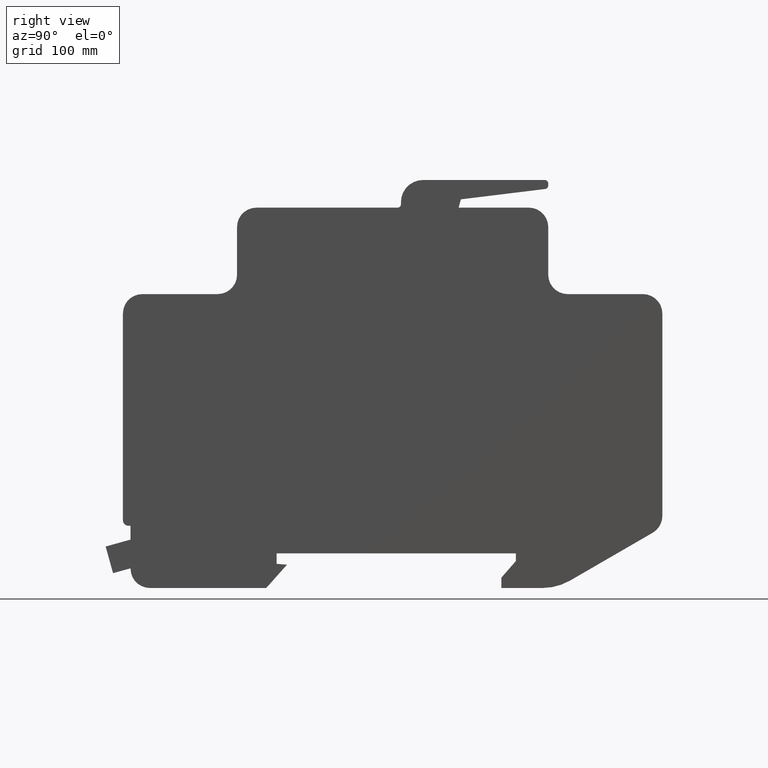
[diagram: clean part render]
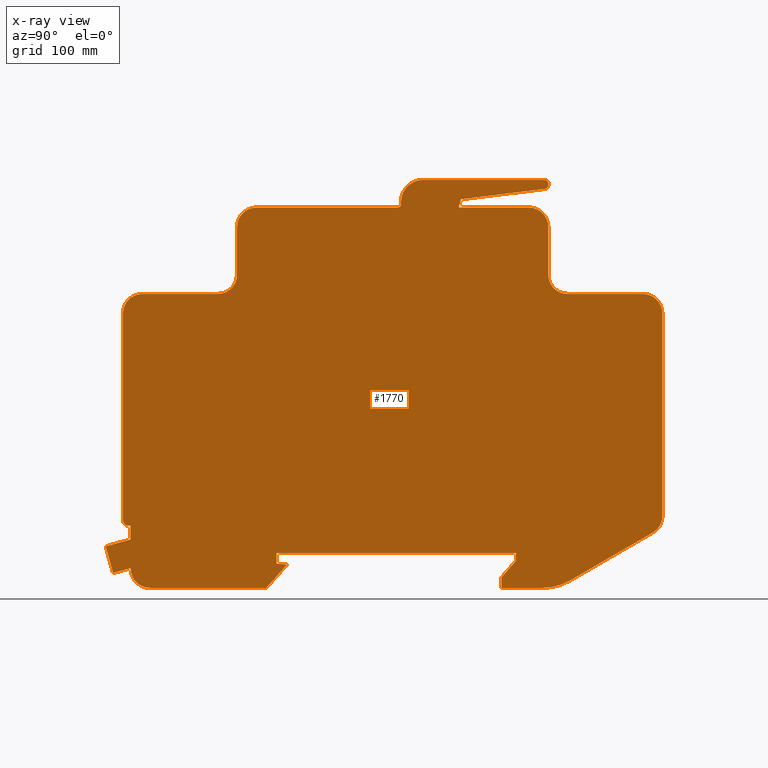
[diagram: x-ray — body ghosted, one internal face saturated and labeled with its STEP entity id]
A machine part, right view, then the same camera in x-ray: the body is ghosted and one INTERNAL B-rep face — a face not visible from any outside direction — is saturated and labeled: STEP entity #1770.
In plain terms, the highlighted planar face has unit normal (-1, 0, 0).
Its self-contained STEP definition (entity closure, byte-faithful):
#313=CARTESIAN_POINT('',(175.00000000000028,38.312738908399808,-50.0));
#314=VERTEX_POINT('',#313);
#315=CARTESIAN_POINT('',(175.00000000000028,-21.000000000000085,-50.0));
#316=VERTEX_POINT('',#315);
#317=CARTESIAN_POINT('',(175.00000000000028,38.312738908399808,-50.0));
#318=DIRECTION('',(0.0,-1.0,0.0));
#319=VECTOR('',#318,59.312738908399893);
#320=LINE('',#317,#319);
#321=EDGE_CURVE('',#314,#316,#320,.T.);
#353=CARTESIAN_POINT('',(175.00000000000028,-20.999999999999801,-35.000000000000284));
#354=VERTEX_POINT('',#353);
#355=CARTESIAN_POINT('',(175.00000000000028,-21.000000000000085,-50.0));
#356=DIRECTION('',(0.0,0.0,1.0));
#357=VECTOR('',#356,14.999999999999716);
#358=LINE('',#355,#357);
#359=EDGE_CURVE('',#316,#354,#358,.T.);
#384=CARTESIAN_POINT('',(175.00000000000028,0.0,-10.999999999999943));
#385=VERTEX_POINT('',#384);
#386=CARTESIAN_POINT('',(175.00000000000028,-20.999999999999801,-35.000000000000284));
#387=DIRECTION('',(0.0,0.658504607868509,0.752576694706886));
#388=VECTOR('',#387,31.890437438204074);
#389=LINE('',#386,#388);
#390=EDGE_CURVE('',#354,#385,#389,.T.);
#415=CARTESIAN_POINT('',(175.00000000000028,0.0,0.0));
#416=VERTEX_POINT('',#415);
#417=CARTESIAN_POINT('',(175.00000000000028,0.0,-10.999999999999943));
#418=DIRECTION('',(0.0,0.0,1.0));
#419=VECTOR('',#418,10.999999999999943);
#420=LINE('',#417,#419);
#421=EDGE_CURVE('',#385,#416,#420,.T.);
#446=CARTESIAN_POINT('',(175.00000000000028,-345.99999999999994,-3.155444E-029));
#447=VERTEX_POINT('',#446);
#448=CARTESIAN_POINT('',(175.00000000000028,0.0,0.0));
#449=DIRECTION('',(0.0,-1.0,0.0));
#450=VECTOR('',#449,345.99999999999994);
#451=LINE('',#448,#450);
#452=EDGE_CURVE('',#416,#447,#451,.T.);
#477=CARTESIAN_POINT('',(175.00000000000028,-345.99999999999994,-15.000000000000142));
#478=VERTEX_POINT('',#477);
#479=CARTESIAN_POINT('',(175.00000000000028,-345.99999999999994,-3.155444E-029));
#480=DIRECTION('',(0.0,0.0,-1.0));
#481=VECTOR('',#480,15.000000000000142);
#482=LINE('',#479,#481);
#483=EDGE_CURVE('',#447,#478,#482,.T.);
#508=CARTESIAN_POINT('',(175.00000000000028,-330.99999999999994,-16.312329952900058));
#509=VERTEX_POINT('',#508);
#510=CARTESIAN_POINT('',(175.00000000000028,-345.99999999999994,-15.000000000000142));
#511=DIRECTION('',(0.0,0.996194698091682,-0.087155742748387));
#512=VECTOR('',#511,15.057297563151176);
#513=LINE('',#510,#512);
#514=EDGE_CURVE('',#478,#509,#513,.T.);
#539=CARTESIAN_POINT('',(175.00000000000028,-360.99999999999994,-50.0));
#540=VERTEX_POINT('',#539);
#541=CARTESIAN_POINT('',(175.00000000000028,-330.99999999999994,-16.312329952900058));
#542=DIRECTION('',(0.0,-0.665049669487373,-0.74679912768745));
#543=VECTOR('',#542,45.109412689618068);
#544=LINE('',#541,#543);
#545=EDGE_CURVE('',#509,#540,#544,.T.);
#570=CARTESIAN_POINT('',(175.00000000000028,-529.19999999999982,-50.000000000000099));
#571=VERTEX_POINT('',#570);
#572=CARTESIAN_POINT('',(175.00000000000028,-360.99999999999994,-49.999999999999979));
#573=DIRECTION('',(0.0,-1.0,0.0));
#574=VECTOR('',#573,168.19999999999987);
#575=LINE('',#572,#574);
#576=EDGE_CURVE('',#540,#571,#575,.T.);
#601=CARTESIAN_POINT('',(175.00000000000028,-557.20000000000005,-22.000000000000028));
#602=VERTEX_POINT('',#601);
#603=CARTESIAN_POINT('',(175.00000000000028,-529.19999999999982,-21.999999999999972));
#604=DIRECTION('',(-1.0,0.0,0.0));
#605=DIRECTION('',(0.0,-0.707106781186546,-0.707106781186549));
#606=AXIS2_PLACEMENT_3D('',#603,#604,#605);
#607=CIRCLE('',#606,28.000000000000124);
#608=EDGE_CURVE('',#571,#602,#607,.T.);
#634=CARTESIAN_POINT('',(175.00000000000028,-557.20000000000005,-21.514537093899762));
#635=VERTEX_POINT('',#634);
#636=CARTESIAN_POINT('',(175.00000000000028,-557.20000000000005,-22.000000000000028));
#637=DIRECTION('',(0.0,0.0,1.0));
#638=VECTOR('',#637,0.485462906100267);
#639=LINE('',#636,#638);
#640=EDGE_CURVE('',#602,#635,#639,.T.);
#665=CARTESIAN_POINT('',(175.00000000000028,-582.49424544860267,-28.540716385189526));
#666=VERTEX_POINT('',#665);
#667=CARTESIAN_POINT('',(175.00000000000028,-557.20000000000005,-21.514537093899762));
#668=DIRECTION('',(0.0,-0.96351790962983,-0.267643863786493));
#669=VECTOR('',#668,26.251972273478877);
#670=LINE('',#667,#669);
#671=EDGE_CURVE('',#635,#666,#670,.T.);
#696=CARTESIAN_POINT('',(175.00000000000028,-593.20000000004075,9.999999999966299));
#697=VERTEX_POINT('',#696);
#698=CARTESIAN_POINT('',(175.00000000000028,-582.49424544860267,-28.540716385189526));
#699=DIRECTION('',(0.0,-0.267643863786234,0.963517909629902));
#700=VECTOR('',#699,39.999999999958227);
#701=LINE('',#698,#700);
#702=EDGE_CURVE('',#666,#697,#701,.T.);
#727=CARTESIAN_POINT('',(175.00000000000028,-557.20000000000005,20.000000000000455));
#728=VERTEX_POINT('',#727);
#729=CARTESIAN_POINT('',(175.00000000000028,-593.20000000004075,9.999999999966299));
#730=DIRECTION('',(0.0,0.963517909629783,0.267643863786662));
#731=VECTOR('',#730,37.363083384587163);
#732=LINE('',#729,#731);
#733=EDGE_CURVE('',#697,#728,#732,.T.);
#758=CARTESIAN_POINT('',(175.00000000000028,-557.20000000000005,40.0));
#759=VERTEX_POINT('',#758);
#760=CARTESIAN_POINT('',(175.00000000000028,-557.20000000000005,20.000000000000455));
#761=DIRECTION('',(0.0,0.0,1.0));
#762=VECTOR('',#761,19.999999999999545);
#763=LINE('',#760,#762);
#764=EDGE_CURVE('',#728,#759,#763,.T.);
#789=CARTESIAN_POINT('',(175.00000000000028,-560.20000000000005,39.999999999999922));
#790=VERTEX_POINT('',#789);
#791=CARTESIAN_POINT('',(175.00000000000028,-557.20000000000005,40.0));
#792=DIRECTION('',(0.0,-1.0,0.0));
#793=VECTOR('',#792,3.0);
#794=LINE('',#791,#793);
#795=EDGE_CURVE('',#759,#790,#794,.T.);
#820=CARTESIAN_POINT('',(175.00000000000028,-568.20000000000027,47.999999999999972));
#821=VERTEX_POINT('',#820);
#822=CARTESIAN_POINT('',(175.00000000000028,-560.20000000000005,48.000000000000043));
#823=DIRECTION('',(-1.0,0.0,0.0));
#824=DIRECTION('',(0.0,-0.707106781186542,-0.707106781186553));
#825=AXIS2_PLACEMENT_3D('',#822,#823,#824);
#826=CIRCLE('',#825,8.000000000000117);
#827=EDGE_CURVE('',#790,#821,#826,.T.);
#853=CARTESIAN_POINT('',(175.00000000000028,-568.20000000000005,346.99999999999994));
#854=VERTEX_POINT('',#853);
#855=CARTESIAN_POINT('',(175.00000000000028,-568.20000000000027,47.999999999999972));
#856=DIRECTION('',(0.0,0.0,1.0));
#857=VECTOR('',#856,299.0);
#858=LINE('',#855,#857);
#859=EDGE_CURVE('',#821,#854,#858,.T.);
#884=CARTESIAN_POINT('',(175.00000000000028,-540.20000000000005,375.0));
#885=VERTEX_POINT('',#884);
#886=CARTESIAN_POINT('',(175.00000000000028,-540.19999999999993,347.0));
#887=DIRECTION('',(-1.0,0.0,0.0));
#888=DIRECTION('',(0.0,-0.707106781186549,0.707106781186546));
#889=AXIS2_PLACEMENT_3D('',#886,#887,#888);
#890=CIRCLE('',#889,27.999999999999968);
#891=EDGE_CURVE('',#854,#885,#890,.T.);
#917=CARTESIAN_POINT('',(175.00000000000028,-431.19999999999976,375.0));
#918=VERTEX_POINT('',#917);
#919=CARTESIAN_POINT('',(175.00000000000028,-540.20000000000005,375.0));
#920=DIRECTION('',(0.0,1.0,0.0));
#921=VECTOR('',#920,109.00000000000034);
#922=LINE('',#919,#921);
#923=EDGE_CURVE('',#885,#918,#922,.T.);
#948=CARTESIAN_POINT('',(175.00000000000028,-403.19999999999982,403.00000000000023));
#949=VERTEX_POINT('',#948);
#950=CARTESIAN_POINT('',(175.00000000000028,-431.19999999999959,402.99999999999989));
#951=DIRECTION('',(1.0,0.0,0.0));
#952=DIRECTION('',(0.0,0.707106781186551,-0.707106781186544));
#953=AXIS2_PLACEMENT_3D('',#950,#951,#952);
#954=CIRCLE('',#953,27.999999999999918);
#955=EDGE_CURVE('',#918,#949,#954,.T.);
#981=CARTESIAN_POINT('',(175.00000000000028,-403.20000000000022,472.0));
#982=VERTEX_POINT('',#981);
#983=CARTESIAN_POINT('',(175.00000000000028,-403.19999999999982,403.00000000000023));
#984=DIRECTION('',(0.0,0.0,1.0));
#985=VECTOR('',#984,68.999999999999773);
#986=LINE('',#983,#985);
#987=EDGE_CURVE('',#949,#982,#986,.T.);
#1012=CARTESIAN_POINT('',(175.00000000000028,-375.2000000000001,499.99999999999994));
#1013=VERTEX_POINT('',#1012);
#1014=CARTESIAN_POINT('',(175.00000000000028,-375.20000000000027,471.99999999999989));
#1015=DIRECTION('',(-1.0,0.0,0.0));
#1016=DIRECTION('',(0.0,-0.707106781186545,0.70710678118655));
#1017=AXIS2_PLACEMENT_3D('',#1014,#1015,#1016);
#1018=CIRCLE('',#1017,28.000000000000004);
#1019=EDGE_CURVE('',#982,#1013,#1018,.T.);
#1045=CARTESIAN_POINT('',(175.00000000000028,-171.20000000000005,499.99999999999994));
#1046=VERTEX_POINT('',#1045);
#1047=CARTESIAN_POINT('',(175.00000000000028,-375.2000000000001,500.00000000000205));
#1048=DIRECTION('',(0.0,1.0,0.0));
#1049=VECTOR('',#1048,204.00000000000006);
#1050=LINE('',#1047,#1049);
#1051=EDGE_CURVE('',#1013,#1046,#1050,.T.);
#1076=CARTESIAN_POINT('',(175.00000000000028,-166.20000000000005,504.99999999999989));
#1077=VERTEX_POINT('',#1076);
#1078=CARTESIAN_POINT('',(175.00000000000028,-171.20000000000005,504.99999999999989));
#1079=DIRECTION('',(1.0,0.0,0.0));
#1080=DIRECTION('',(0.0,0.707106781186542,-0.707106781186553));
#1081=AXIS2_PLACEMENT_3D('',#1078,#1079,#1080);
#1082=CIRCLE('',#1081,4.999999999999964);
#1083=EDGE_CURVE('',#1046,#1077,#1082,.T.);
#1109=CARTESIAN_POINT('',(175.00000000000028,-166.1999999999999,508.00000000000006));
#1110=VERTEX_POINT('',#1109);
#1111=CARTESIAN_POINT('',(175.00000000000028,-166.20000000000005,504.99999999999989));
#1112=DIRECTION('',(0.0,0.0,1.0));
#1113=VECTOR('',#1112,3.000000000000171);
#1114=LINE('',#1111,#1113);
#1115=EDGE_CURVE('',#1077,#1110,#1114,.T.);
#1140=CARTESIAN_POINT('',(175.00000000000028,-134.19999999999987,540.0));
#1141=VERTEX_POINT('',#1140);
#1142=CARTESIAN_POINT('',(175.00000000000028,-134.19999999999987,508.00000000000006));
#1143=DIRECTION('',(-1.0,0.0,0.0));
#1144=DIRECTION('',(0.0,-0.707106781186547,0.707106781186548));
#1145=AXIS2_PLACEMENT_3D('',#1142,#1143,#1144);
#1146=CIRCLE('',#1145,31.999999999999989);
#1147=EDGE_CURVE('',#1110,#1141,#1146,.T.);
#1173=CARTESIAN_POINT('',(175.00000000000028,41.799999999999784,540.00000000000011));
#1174=VERTEX_POINT('',#1173);
#1175=CARTESIAN_POINT('',(175.00000000000028,-134.19999999999987,540.0));
#1176=DIRECTION('',(0.0,1.0,0.0));
#1177=VECTOR('',#1176,175.99999999999966);
#1178=LINE('',#1175,#1177);
#1179=EDGE_CURVE('',#1141,#1174,#1178,.T.);
#1204=CARTESIAN_POINT('',(175.00000000000028,46.799999999999784,535.0));
#1205=VERTEX_POINT('',#1204);
#1206=CARTESIAN_POINT('',(175.00000000000028,41.799999999999784,535.0));
#1207=DIRECTION('',(-1.0,0.0,0.0));
#1208=DIRECTION('',(0.0,0.707106781186553,0.707106781186542));
#1209=AXIS2_PLACEMENT_3D('',#1206,#1207,#1208);
#1210=CIRCLE('',#1209,5.000000000000036);
#1211=EDGE_CURVE('',#1174,#1205,#1210,.T.);
#1237=CARTESIAN_POINT('',(175.00000000000028,46.799999999999784,531.93792574384008));
#1238=VERTEX_POINT('',#1237);
#1239=CARTESIAN_POINT('',(175.00000000000028,46.799999999999784,535.0));
#1240=DIRECTION('',(0.0,0.0,-1.0));
#1241=VECTOR('',#1240,3.062074256159917);
#1242=LINE('',#1239,#1241);
#1243=EDGE_CURVE('',#1205,#1238,#1242,.T.);
#1268=CARTESIAN_POINT('',(175.00000000000028,42.409346717013108,526.97519498563202));
#1269=VERTEX_POINT('',#1268);
#1270=CARTESIAN_POINT('',(175.00000000000028,41.799999999999642,531.93792574384008));
#1271=DIRECTION('',(-1.0,0.0,0.0));
#1272=DIRECTION('',(0.0,0.748955720788176,-0.662620048216672));
#1273=AXIS2_PLACEMENT_3D('',#1270,#1271,#1272);
#1274=CIRCLE('',#1273,5.000000000000018);
#1275=EDGE_CURVE('',#1238,#1269,#1274,.T.);
#1301=CARTESIAN_POINT('',(175.00000000000028,-79.553829072486621,511.99999999999699));
#1302=VERTEX_POINT('',#1301);
#1303=CARTESIAN_POINT('',(175.00000000000028,42.409346717013108,526.97519498563202));
#1304=DIRECTION('',(0.0,-0.992546151641325,-0.121869343405127));
#1305=VECTOR('',#1304,122.87909795208543);
#1306=LINE('',#1303,#1305);
#1307=EDGE_CURVE('',#1269,#1302,#1306,.T.);
#1332=CARTESIAN_POINT('',(175.00000000000028,-82.769219381656853,500.0));
#1333=VERTEX_POINT('',#1332);
#1334=CARTESIAN_POINT('',(175.00000000000028,-79.553829072486621,511.99999999999699));
#1335=DIRECTION('',(0.0,-0.258819045102338,-0.965925826289117));
#1336=VECTOR('',#1335,12.423314164917247);
#1337=LINE('',#1334,#1336);
#1338=EDGE_CURVE('',#1302,#1333,#1337,.T.);
#1363=CARTESIAN_POINT('',(175.00000000000028,18.799999999999955,500.00000000000006));
#1364=VERTEX_POINT('',#1363);
#1365=CARTESIAN_POINT('',(175.00000000000028,-82.769219381656853,500.00000000000358));
#1366=DIRECTION('',(0.0,1.0,0.0));
#1367=VECTOR('',#1366,101.56921938165681);
#1368=LINE('',#1365,#1367);
#1369=EDGE_CURVE('',#1333,#1364,#1368,.T.);
#1394=CARTESIAN_POINT('',(175.00000000000028,46.799999999999926,471.99999999999994));
#1395=VERTEX_POINT('',#1394);
#1396=CARTESIAN_POINT('',(175.00000000000028,18.799999999999955,472.0));
#1397=DIRECTION('',(-1.0,0.0,0.0));
#1398=DIRECTION('',(0.0,0.707106781186549,0.707106781186546));
#1399=AXIS2_PLACEMENT_3D('',#1396,#1397,#1398);
#1400=CIRCLE('',#1399,28.000000000000039);
#1401=EDGE_CURVE('',#1364,#1395,#1400,.T.);
#1427=CARTESIAN_POINT('',(175.00000000000028,46.799999999999784,403.0));
#1428=VERTEX_POINT('',#1427);
#1429=CARTESIAN_POINT('',(175.00000000000028,46.799999999999926,471.99999999999994));
#1430=DIRECTION('',(0.0,0.0,-1.0));
#1431=VECTOR('',#1430,69.0);
#1432=LINE('',#1429,#1431);
#1433=EDGE_CURVE('',#1395,#1428,#1432,.T.);
#1458=CARTESIAN_POINT('',(175.00000000000028,74.799999999999898,374.99999999999994));
#1459=VERTEX_POINT('',#1458);
#1460=CARTESIAN_POINT('',(175.00000000000028,74.799999999999898,403.0));
#1461=DIRECTION('',(1.0,0.0,0.0));
#1462=DIRECTION('',(0.0,-0.707106781186547,-0.707106781186548));
#1463=AXIS2_PLACEMENT_3D('',#1460,#1461,#1462);
#1464=CIRCLE('',#1463,28.000000000000075);
#1465=EDGE_CURVE('',#1428,#1459,#1464,.T.);
#1491=CARTESIAN_POINT('',(175.00000000000028,183.79999999999995,375.0));
#1492=VERTEX_POINT('',#1491);
#1493=CARTESIAN_POINT('',(175.00000000000028,74.799999999999898,374.99999999999994));
#1494=DIRECTION('',(0.0,1.0,0.0));
#1495=VECTOR('',#1494,109.00000000000006);
#1496=LINE('',#1493,#1495);
#1497=EDGE_CURVE('',#1459,#1492,#1496,.T.);
#1522=CARTESIAN_POINT('',(175.00000000000028,211.80000000000007,346.99999999999994));
#1523=VERTEX_POINT('',#1522);
#1524=CARTESIAN_POINT('',(175.00000000000028,183.79999999999995,346.99999999999989));
#1525=DIRECTION('',(-1.0,0.0,0.0));
#1526=DIRECTION('',(0.0,0.707106781186547,0.707106781186548));
#1527=AXIS2_PLACEMENT_3D('',#1524,#1525,#1526);
#1528=CIRCLE('',#1527,28.000000000000075);
#1529=EDGE_CURVE('',#1492,#1523,#1528,.T.);
#1555=CARTESIAN_POINT('',(175.00000000000028,211.79999999999978,54.143471326499935));
#1556=VERTEX_POINT('',#1555);
#1557=CARTESIAN_POINT('',(175.00000000000028,211.80000000000007,346.99999999999994));
#1558=DIRECTION('',(0.0,0.0,-1.0));
#1559=VECTOR('',#1558,292.85652867350001);
#1560=LINE('',#1557,#1559);
#1561=EDGE_CURVE('',#1523,#1556,#1560,.T.);
#1586=CARTESIAN_POINT('',(175.00000000000028,197.82901557516368,29.911535333025952));
#1587=VERTEX_POINT('',#1586);
#1588=CARTESIAN_POINT('',(175.00000000000028,183.79999999999995,54.143471326499494));
#1589=DIRECTION('',(-1.0,0.0,0.0));
#1590=DIRECTION('',(0.0,0.866324497674392,-0.499481595986491));
#1591=AXIS2_PLACEMENT_3D('',#1588,#1589,#1590);
#1592=CIRCLE('',#1591,27.999999999999623);
#1593=EDGE_CURVE('',#1556,#1587,#1592,.T.);
#1619=CARTESIAN_POINT('',(175.00000000000028,78.395640551724313,-39.234102838497108));
#1620=VERTEX_POINT('',#1619);
#1621=CARTESIAN_POINT('',(175.00000000000028,197.82901557516368,29.911535333025952));
#1622=DIRECTION('',(0.0,-0.865426285480943,-0.50103627054202));
#1623=VECTOR('',#1622,138.00525478269549);
#1624=LINE('',#1621,#1623);
#1625=EDGE_CURVE('',#1587,#1620,#1624,.T.);
#1650=CARTESIAN_POINT('',(175.00000000000028,38.31273890839995,29.999999999999901));
#1651=DIRECTION('',(-1.0,0.0,0.0));
#1652=DIRECTION('',(0.0,0.259397103413651,-0.965770750613523));
#1653=AXIS2_PLACEMENT_3D('',#1650,#1651,#1652);
#1654=CIRCLE('',#1653,79.999999999999901);
#1655=EDGE_CURVE('',#1620,#314,#1654,.T.);
#1720=CARTESIAN_POINT('',(175.00000000000028,38.312738908399808,-50.0));
#1721=DIRECTION('',(-1.0,0.0,0.0));
#1722=DIRECTION('',(0.0,0.0,1.0));
#1723=AXIS2_PLACEMENT_3D('',#1720,#1721,#1722);
#1724=PLANE('',#1723);
#1725=ORIENTED_EDGE('',*,*,#321,.F.);
#1726=ORIENTED_EDGE('',*,*,#1655,.F.);
#1727=ORIENTED_EDGE('',*,*,#1625,.F.);
#1728=ORIENTED_EDGE('',*,*,#1593,.F.);
#1729=ORIENTED_EDGE('',*,*,#1561,.F.);
#1730=ORIENTED_EDGE('',*,*,#1529,.F.);
#1731=ORIENTED_EDGE('',*,*,#1497,.F.);
#1732=ORIENTED_EDGE('',*,*,#1465,.F.);
#1733=ORIENTED_EDGE('',*,*,#1433,.F.);
#1734=ORIENTED_EDGE('',*,*,#1401,.F.);
#1735=ORIENTED_EDGE('',*,*,#1369,.F.);
#1736=ORIENTED_EDGE('',*,*,#1338,.F.);
#1737=ORIENTED_EDGE('',*,*,#1307,.F.);
#1738=ORIENTED_EDGE('',*,*,#1275,.F.);
#1739=ORIENTED_EDGE('',*,*,#1243,.F.);
#1740=ORIENTED_EDGE('',*,*,#1211,.F.);
#1741=ORIENTED_EDGE('',*,*,#1179,.F.);
#1742=ORIENTED_EDGE('',*,*,#1147,.F.);
#1743=ORIENTED_EDGE('',*,*,#1115,.F.);
#1744=ORIENTED_EDGE('',*,*,#1083,.F.);
#1745=ORIENTED_EDGE('',*,*,#1051,.F.);
#1746=ORIENTED_EDGE('',*,*,#1019,.F.);
#1747=ORIENTED_EDGE('',*,*,#987,.F.);
#1748=ORIENTED_EDGE('',*,*,#955,.F.);
#1749=ORIENTED_EDGE('',*,*,#923,.F.);
#1750=ORIENTED_EDGE('',*,*,#891,.F.);
#1751=ORIENTED_EDGE('',*,*,#859,.F.);
#1752=ORIENTED_EDGE('',*,*,#827,.F.);
#1753=ORIENTED_EDGE('',*,*,#795,.F.);
#1754=ORIENTED_EDGE('',*,*,#764,.F.);
#1755=ORIENTED_EDGE('',*,*,#733,.F.);
#1756=ORIENTED_EDGE('',*,*,#702,.F.);
#1757=ORIENTED_EDGE('',*,*,#671,.F.);
#1758=ORIENTED_EDGE('',*,*,#640,.F.);
#1759=ORIENTED_EDGE('',*,*,#608,.F.);
#1760=ORIENTED_EDGE('',*,*,#576,.F.);
#1761=ORIENTED_EDGE('',*,*,#545,.F.);
#1762=ORIENTED_EDGE('',*,*,#514,.F.);
#1763=ORIENTED_EDGE('',*,*,#483,.F.);
#1764=ORIENTED_EDGE('',*,*,#452,.F.);
#1765=ORIENTED_EDGE('',*,*,#421,.F.);
#1766=ORIENTED_EDGE('',*,*,#390,.F.);
#1767=ORIENTED_EDGE('',*,*,#359,.F.);
#1768=EDGE_LOOP('',(#1725,#1726,#1727,#1728,#1729,#1730,#1731,#1732,#1733,#1734,#1735,#1736,#1737,#1738,#1739,#1740,#1741,#1742,#1743,#1744,#1745,#1746,#1747,#1748,#1749,#1750,#1751,#1752,#1753,#1754,#1755,#1756,#1757,#1758,#1759,#1760,#1761,#1762,#1763,#1764,#1765,#1766,#1767));
#1769=FACE_OUTER_BOUND('',#1768,.T.);
#1770=ADVANCED_FACE('',(#1769),#1724,.F.);